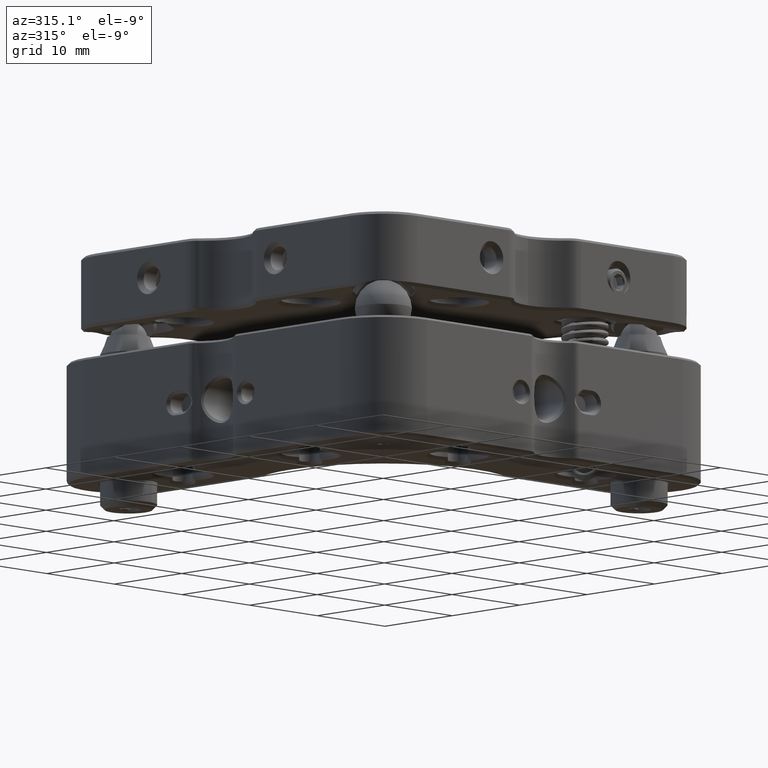
[diagram: clean part render]
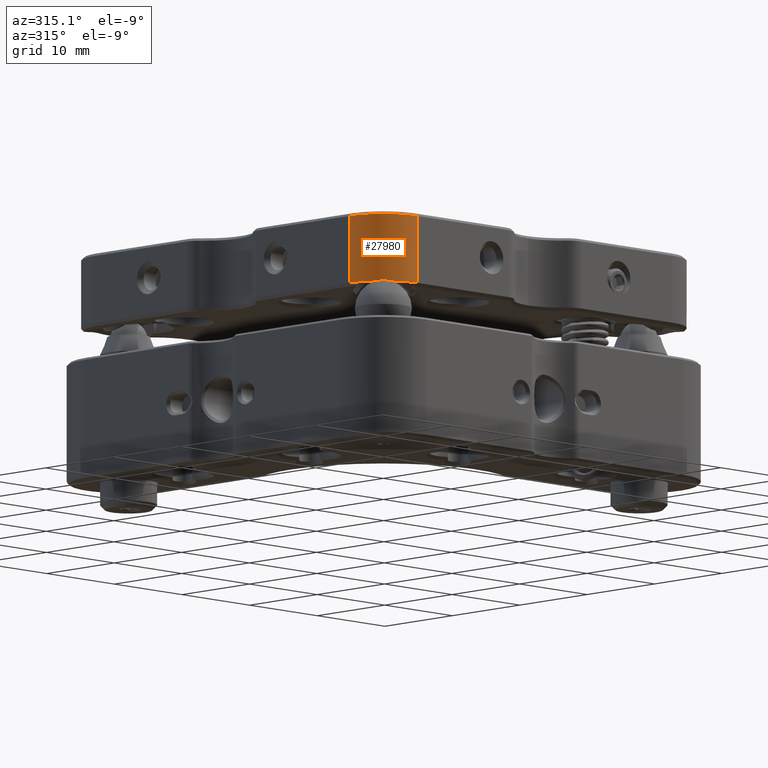
[diagram: same view with one face highlighted and labeled with its STEP entity id]
A machine part, auxiliary view. The second image highlights one B-rep face of the part: STEP entity #27980.
In plain terms, the highlighted cylindrical surface (partial cylindrical patch) has radius 5 mm, axis along (0, 0, -1).
Its self-contained STEP definition (entity closure, byte-faithful):
#519 = DIRECTION ( 'NONE',  ( -0.000000000000000000, -0.000000000000000000, 1.000000000000000000 ) ) ;
#538 = CARTESIAN_POINT ( 'NONE',  ( -28.89999999999999147, -23.89999999999999858, 3.550000000000011369 ) ) ;
#675 = CARTESIAN_POINT ( 'NONE',  ( -24.85704395417472412, -21.84832230483077353, -3.492298627634916386 ) ) ;
#729 = FACE_OUTER_BOUND ( 'NONE', #14087, .T. ) ;
#965 = CARTESIAN_POINT ( 'NONE',  ( -28.89999999999999147, -18.89999999999999503, -3.549999999999998490 ) ) ;
#1673 = B_SPLINE_CURVE_WITH_KNOTS ( 'NONE', 3,
 ( #24659, #5074, #7197, #9319, #11596, #4774, #675, #2785, #17994 ),
 .UNSPECIFIED., .F., .F.,
 ( 4, 2, 1, 2, 4 ),
 ( 0.001273684505763098039, 0.001854848133422287411, 0.002436011761081476566, 0.003017175388740665938, 0.003598339016399855310 ),
 .UNSPECIFIED. ) ;
#2348 = EDGE_CURVE ( 'NONE', #14739, #24837, #17940, .T. ) ;
#2566 = EDGE_CURVE ( 'NONE', #26900, #27134, #16133, .T. ) ;
#2785 = CARTESIAN_POINT ( 'NONE',  ( -24.74498532269892692, -21.68796381560553499, -3.517705618973478998 ) ) ;
#2937 = CARTESIAN_POINT ( 'NONE',  ( -28.89999999999999147, -23.89999999999999858, -3.549999999999998490 ) ) ;
#4038 = CARTESIAN_POINT ( 'NONE',  ( -23.89999999999999147, -18.89999999999999147, 3.850000000000000089 ) ) ;
#4384 = ORIENTED_EDGE ( 'NONE', *, *, #27795, .T. ) ;
#4774 = CARTESIAN_POINT ( 'NONE',  ( -25.09918701625027282, -22.15452280130240226, -3.458429801929235659 ) ) ;
#4832 = DIRECTION ( 'NONE',  ( 0.000000000000000000, 0.000000000000000000, -1.000000000000000000 ) ) ;
#4854 = LINE ( 'NONE', #4038, #26333 ) ;
#5074 = CARTESIAN_POINT ( 'NONE',  ( -26.11201719916275366, -23.05500296949156080, -3.517701868561161849 ) ) ;
#5863 = DIRECTION ( 'NONE',  ( -0.000000000000000000, -0.000000000000000000, 1.000000000000000000 ) ) ;
#7197 = CARTESIAN_POINT ( 'NONE',  ( -25.95094028052552915, -22.94237173967762189, -3.492217663301414365 ) ) ;
#8511 = CARTESIAN_POINT ( 'NONE',  ( -26.27551589098053952, -23.15582931536314604, -3.549999999999998490 ) ) ;
#9266 = CIRCLE ( 'NONE', #22863, 5.000000000000000888 ) ;
#9319 = CARTESIAN_POINT ( 'NONE',  ( -25.64625133627849252, -22.70142633022153689, -3.458514828257933438 ) ) ;
#9738 = VERTEX_POINT ( 'NONE', #2937 ) ;
#9743 = EDGE_CURVE ( 'NONE', #10698, #14739, #1673, .T. ) ;
#10237 = EDGE_CURVE ( 'NONE', #24837, #26900, #4854, .T. ) ;
#10368 = CARTESIAN_POINT ( 'NONE',  ( -24.64417068463682270, -21.52448410901941500, -3.549999999999996270 ) ) ;
#10698 = VERTEX_POINT ( 'NONE', #8511 ) ;
#10810 = CARTESIAN_POINT ( 'NONE',  ( -28.89999999999999147, -18.89999999999999503, 3.550000000000011369 ) ) ;
#11596 = CARTESIAN_POINT ( 'NONE',  ( -25.35724396487187349, -22.44412337127769064, -3.441527754144851681 ) ) ;
#13387 = AXIS2_PLACEMENT_3D ( 'NONE', #18521, #5863, #23450 ) ;
#13679 = LINE ( 'NONE', #21891, #16669 ) ;
#14087 = EDGE_LOOP ( 'NONE', ( #14324, #22915, #26633, #18456, #4384, #25007 ) ) ;
#14324 = ORIENTED_EDGE ( 'NONE', *, *, #9743, .T. ) ;
#14739 = VERTEX_POINT ( 'NONE', #10368 ) ;
#16133 = CIRCLE ( 'NONE', #25168, 5.000000000000000888 ) ;
#16669 = VECTOR ( 'NONE', #23877, 1000.000000000000000 ) ;
#17940 = CIRCLE ( 'NONE', #13387, 5.000000000000000888 ) ;
#17994 = CARTESIAN_POINT ( 'NONE',  ( -24.64417068463682270, -21.52448410901941500, -3.549999999999996270 ) ) ;
#18456 = ORIENTED_EDGE ( 'NONE', *, *, #2566, .T. ) ;
#18521 = CARTESIAN_POINT ( 'NONE',  ( -28.89999999999999147, -18.89999999999999503, -3.549999999999998490 ) ) ;
#19326 = DIRECTION ( 'NONE',  ( 1.000000000000000000, 0.000000000000000000, 0.000000000000000000 ) ) ;
#19726 = CYLINDRICAL_SURFACE ( 'NONE', #26153, 5.000000000000000888 ) ;
#19793 = EDGE_CURVE ( 'NONE', #9738, #10698, #9266, .T. ) ;
#20450 = CARTESIAN_POINT ( 'NONE',  ( -23.89999999999999147, -18.89999999999999147, -3.549999999999998490 ) ) ;
#21392 = CARTESIAN_POINT ( 'NONE',  ( -23.89999999999999147, -18.89999999999999147, 3.550000000000011369 ) ) ;
#21891 = CARTESIAN_POINT ( 'NONE',  ( -28.89999999999999147, -23.89999999999999858, 3.850000000000000089 ) ) ;
#22000 = DIRECTION ( 'NONE',  ( 1.000000000000000000, 0.000000000000000000, 0.000000000000000000 ) ) ;
#22284 = CARTESIAN_POINT ( 'NONE',  ( -28.89999999999999147, -18.89999999999999503, 3.850000000000000089 ) ) ;
#22369 = DIRECTION ( 'NONE',  ( 1.000000000000000000, 0.000000000000000000, 0.000000000000000000 ) ) ;
#22863 = AXIS2_PLACEMENT_3D ( 'NONE', #965, #519, #22369 ) ;
#22915 = ORIENTED_EDGE ( 'NONE', *, *, #2348, .T. ) ;
#23450 = DIRECTION ( 'NONE',  ( 1.000000000000000000, 0.000000000000000000, 0.000000000000000000 ) ) ;
#23759 = DIRECTION ( 'NONE',  ( -0.000000000000000000, -0.000000000000000000, 1.000000000000000000 ) ) ;
#23877 = DIRECTION ( 'NONE',  ( 0.000000000000000000, 0.000000000000000000, -1.000000000000000000 ) ) ;
#24659 = CARTESIAN_POINT ( 'NONE',  ( -26.27551589098053952, -23.15582931536314604, -3.549999999999998490 ) ) ;
#24837 = VERTEX_POINT ( 'NONE', #20450 ) ;
#25007 = ORIENTED_EDGE ( 'NONE', *, *, #19793, .T. ) ;
#25168 = AXIS2_PLACEMENT_3D ( 'NONE', #10810, #27985, #19326 ) ;
#26153 = AXIS2_PLACEMENT_3D ( 'NONE', #22284, #4832, #22000 ) ;
#26333 = VECTOR ( 'NONE', #23759, 1000.000000000000000 ) ;
#26633 = ORIENTED_EDGE ( 'NONE', *, *, #10237, .T. ) ;
#26900 = VERTEX_POINT ( 'NONE', #21392 ) ;
#27134 = VERTEX_POINT ( 'NONE', #538 ) ;
#27795 = EDGE_CURVE ( 'NONE', #27134, #9738, #13679, .T. ) ;
#27980 = ADVANCED_FACE ( 'NONE', ( #729 ), #19726, .T. ) ;
#27985 = DIRECTION ( 'NONE',  ( -0.000000000000000000, -0.000000000000000000, -1.000000000000000000 ) ) ;